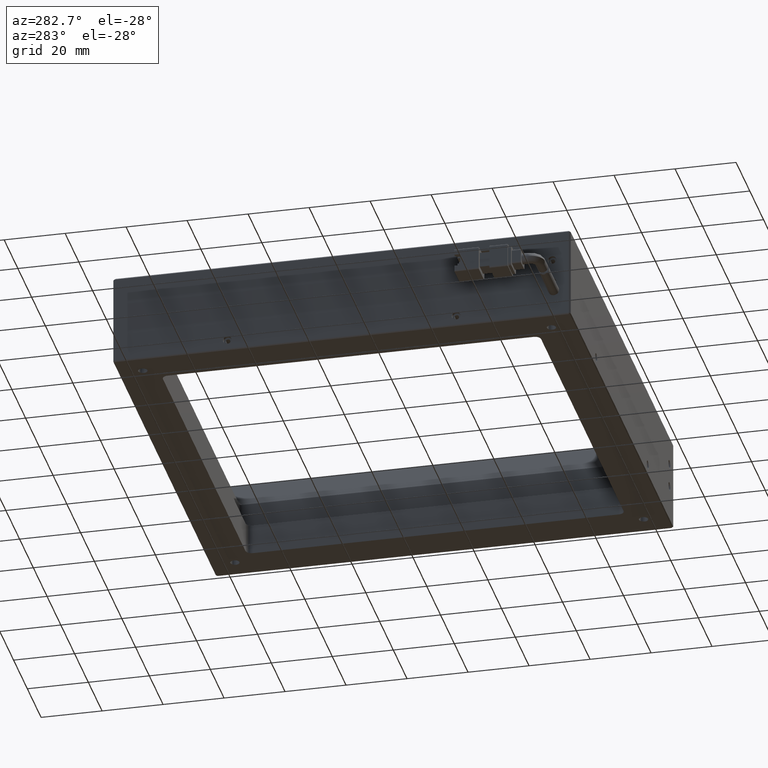
[diagram: clean part render]
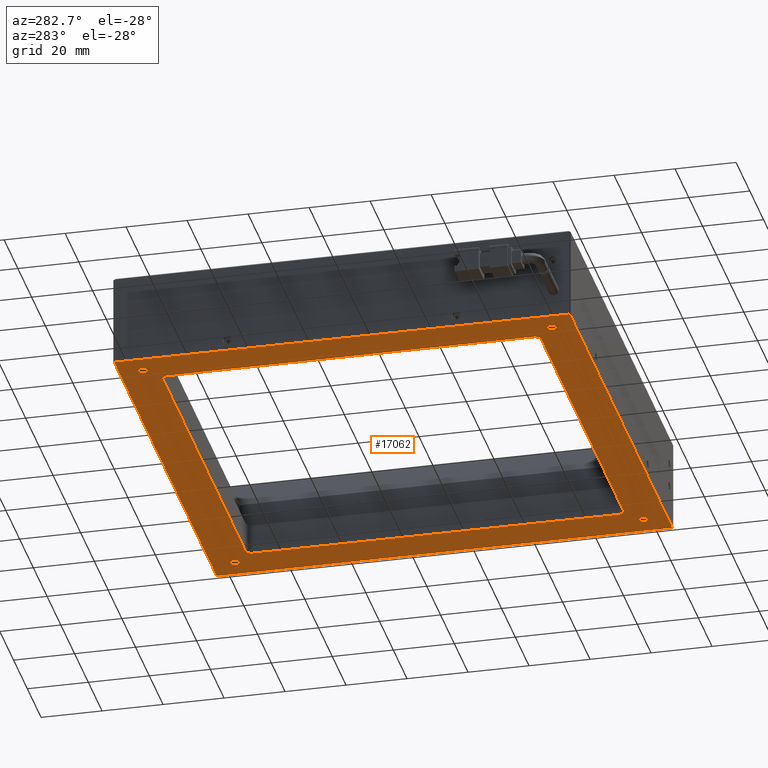
[diagram: same view with one face highlighted and labeled with its STEP entity id]
A machine part, auxiliary view. The second image highlights one B-rep face of the part: STEP entity #17062.
In plain terms, the highlighted planar face has unit normal (0, 0, -1).
Its self-contained STEP definition (entity closure, byte-faithful):
#53 = ORIENTED_EDGE ( 'NONE', *, *, #10431, .T. ) ;
#137 = EDGE_CURVE ( 'NONE', #1394, #10151, #2453, .T. ) ;
#292 = CARTESIAN_POINT ( 'NONE',  ( -84.20748655061092300, -63.95061932287364200, -4.999999999999938700 ) ) ;
#318 = EDGE_CURVE ( 'NONE', #13336, #2080, #16408, .T. ) ;
#358 = VERTEX_POINT ( 'NONE', #15111 ) ;
#499 = EDGE_CURVE ( 'NONE', #7319, #5246, #15657, .T. ) ;
#551 = CARTESIAN_POINT ( 'NONE',  ( -69.83175061932284700, 70.74938067712632500, -4.999999999999938700 ) ) ;
#646 = ORIENTED_EDGE ( 'NONE', *, *, #9256, .T. ) ;
#648 = CARTESIAN_POINT ( 'NONE',  ( 64.86824938067711300, 85.12511660841441600, -4.999999999999938700 ) ) ;
#678 = CIRCLE ( 'NONE', #18795, 1.500000000000029100 ) ;
#961 = DIRECTION ( 'NONE',  ( -1.000000000000000000, 0.0000000000000000000, 0.0000000000000000000 ) ) ;
#1154 = VECTOR ( 'NONE', #9550, 1000.000000000000000 ) ;
#1233 = VECTOR ( 'NONE', #8865, 1000.000000000000000 ) ;
#1374 = LINE ( 'NONE', #292, #17637 ) ;
#1380 = DIRECTION ( 'NONE',  ( -0.0000000000000000000, 0.0000000000000000000, 1.000000000000000000 ) ) ;
#1394 = VERTEX_POINT ( 'NONE', #19283 ) ;
#1542 = LINE ( 'NONE', #12636, #17287 ) ;
#1568 = DIRECTION ( 'NONE',  ( 0.0000000000000000000, 0.0000000000000000000, 1.000000000000000000 ) ) ;
#1767 = ORIENTED_EDGE ( 'NONE', *, *, #6203, .T. ) ;
#1866 = VECTOR ( 'NONE', #18295, 1000.000000000000100 ) ;
#1867 = EDGE_CURVE ( 'NONE', #11138, #11310, #678, .T. ) ;
#2022 = DIRECTION ( 'NONE',  ( 0.0000000000000000000, 0.0000000000000000000, 1.000000000000000000 ) ) ;
#2028 = AXIS2_PLACEMENT_3D ( 'NONE', #18224, #8791, #19786 ) ;
#2080 = VERTEX_POINT ( 'NONE', #11585 ) ;
#2147 = DIRECTION ( 'NONE',  ( 1.000000000000000000, 0.0000000000000000000, 0.0000000000000000000 ) ) ;
#2409 = DIRECTION ( 'NONE',  ( -1.000000000000000000, 0.0000000000000000000, -0.0000000000000000000 ) ) ;
#2453 = LINE ( 'NONE', #4066, #10323 ) ;
#2587 = AXIS2_PLACEMENT_3D ( 'NONE', #7693, #18673, #9266 ) ;
#2674 = AXIS2_PLACEMENT_3D ( 'NONE', #10989, #1568, #12563 ) ;
#2748 = CARTESIAN_POINT ( 'NONE',  ( 65.16824938067712500, -64.25061932287364600, -4.999999999999938700 ) ) ;
#3006 = ORIENTED_EDGE ( 'NONE', *, *, #12011, .T. ) ;
#3096 = CIRCLE ( 'NONE', #20095, 2.000000000000001800 ) ;
#3121 = VERTEX_POINT ( 'NONE', #648 ) ;
#3173 = CARTESIAN_POINT ( 'NONE',  ( -84.20748655061092300, -63.95061932287362800, -4.999999999999940500 ) ) ;
#3369 = EDGE_LOOP ( 'NONE', ( #14913, #8020 ) ) ;
#3518 = ORIENTED_EDGE ( 'NONE', *, *, #11587, .T. ) ;
#3537 = EDGE_CURVE ( 'NONE', #2080, #13336, #5035, .T. ) ;
#3650 = CARTESIAN_POINT ( 'NONE',  ( 58.66824938067720300, 77.74938067712635400, -5.000000000000061300 ) ) ;
#3868 = LINE ( 'NONE', #8247, #11770 ) ;
#3875 = FACE_BOUND ( 'NONE', #8641, .T. ) ;
#3952 = CARTESIAN_POINT ( 'NONE',  ( 65.16824938067712500, -63.95061932287364200, -4.999999999999938700 ) ) ;
#3955 = CARTESIAN_POINT ( 'NONE',  ( 50.16824938067718200, 72.74938067712632500, -4.999999999999938700 ) ) ;
#4066 = CARTESIAN_POINT ( 'NONE',  ( -84.53175061932287800, -64.25061932287364600, -4.999999999999938700 ) ) ;
#4209 = EDGE_CURVE ( 'NONE', #3121, #18738, #1542, .T. ) ;
#4230 = VERTEX_POINT ( 'NONE', #19027 ) ;
#4325 = DIRECTION ( 'NONE',  ( -1.000000000000000000, 0.0000000000000000000, -0.0000000000000000000 ) ) ;
#4348 = CARTESIAN_POINT ( 'NONE',  ( -76.83175061932284700, -56.25061932287367500, -5.000000000000061300 ) ) ;
#4667 = EDGE_LOOP ( 'NONE', ( #9603, #11210 ) ) ;
#4684 = DIRECTION ( 'NONE',  ( 0.7071067811865323600, -0.7071067811865626700, 0.0000000000000000000 ) ) ;
#4793 = AXIS2_PLACEMENT_3D ( 'NONE', #8677, #19674, #10264 ) ;
#4844 = CARTESIAN_POINT ( 'NONE',  ( 55.66824938067714600, 77.74938067712635400, -5.000000000000061300 ) ) ;
#4886 = CARTESIAN_POINT ( 'NONE',  ( 65.16824938067712500, 72.74938067712632500, -4.999999999999938700 ) ) ;
#5020 = VECTOR ( 'NONE', #19597, 1000.000000000000000 ) ;
#5027 = CARTESIAN_POINT ( 'NONE',  ( 52.16824938067718200, 70.74938067712632500, -4.999999999999938700 ) ) ;
#5035 = CIRCLE ( 'NONE', #9003, 1.500000000000029100 ) ;
#5246 = VERTEX_POINT ( 'NONE', #3955 ) ;
#5402 = LINE ( 'NONE', #7304, #1233 ) ;
#5438 = VERTEX_POINT ( 'NONE', #18610 ) ;
#5457 = EDGE_CURVE ( 'NONE', #11310, #11138, #13962, .T. ) ;
#5581 = EDGE_CURVE ( 'NONE', #9155, #17556, #17895, .T. ) ;
#5854 = DIRECTION ( 'NONE',  ( 0.0000000000000000000, 0.0000000000000000000, 1.000000000000000000 ) ) ;
#5933 = DIRECTION ( 'NONE',  ( -1.000000000000000000, 0.0000000000000000000, 0.0000000000000000000 ) ) ;
#6062 = CARTESIAN_POINT ( 'NONE',  ( -78.33175061932287500, -56.25061932287367500, -5.000000000000061300 ) ) ;
#6104 = CARTESIAN_POINT ( 'NONE',  ( 52.16824938067718200, -64.25061932287364600, -4.999999999999938700 ) ) ;
#6203 = EDGE_CURVE ( 'NONE', #358, #14140, #7258, .T. ) ;
#6625 = VECTOR ( 'NONE', #12798, 1000.000000000000000 ) ;
#6670 = DIRECTION ( 'NONE',  ( 0.0000000000000000000, 0.0000000000000000000, 1.000000000000000000 ) ) ;
#6995 = EDGE_CURVE ( 'NONE', #8322, #11645, #17964, .T. ) ;
#7258 = CIRCLE ( 'NONE', #10506, 1.500000000000029100 ) ;
#7304 = CARTESIAN_POINT ( 'NONE',  ( -84.53175061932287800, 85.12511660841443000, -4.999999999999938700 ) ) ;
#7319 = VERTEX_POINT ( 'NONE', #5027 ) ;
#7667 = EDGE_CURVE ( 'NONE', #16527, #7319, #17447, .T. ) ;
#7693 = CARTESIAN_POINT ( 'NONE',  ( 57.16824938067717500, 77.74938067712635400, -5.000000000000061300 ) ) ;
#7697 = DIRECTION ( 'NONE',  ( 0.0000000000000000000, 1.000000000000000000, 0.0000000000000000000 ) ) ;
#7876 = AXIS2_PLACEMENT_3D ( 'NONE', #8995, #19973, #10565 ) ;
#7947 = AXIS2_PLACEMENT_3D ( 'NONE', #10792, #1380, #12366 ) ;
#8020 = ORIENTED_EDGE ( 'NONE', *, *, #14536, .T. ) ;
#8106 = FACE_BOUND ( 'NONE', #10763, .T. ) ;
#8150 = DIRECTION ( 'NONE',  ( -0.7071067811865324700, 0.7071067811865626700, 0.0000000000000000000 ) ) ;
#8172 = VERTEX_POINT ( 'NONE', #8689 ) ;
#8247 = CARTESIAN_POINT ( 'NONE',  ( 65.16824938067712500, -51.25061932287366800, -4.999999999999938700 ) ) ;
#8276 = EDGE_CURVE ( 'NONE', #14140, #358, #14416, .T. ) ;
#8322 = VERTEX_POINT ( 'NONE', #6062 ) ;
#8549 = AXIS2_PLACEMENT_3D ( 'NONE', #4348, #15349, #5933 ) ;
#8641 = EDGE_LOOP ( 'NONE', ( #18750, #1767 ) ) ;
#8677 = CARTESIAN_POINT ( 'NONE',  ( 50.16824938067719600, -49.25061932287366800, -4.999999999999938700 ) ) ;
#8689 = CARTESIAN_POINT ( 'NONE',  ( -69.83175061932284700, 72.74938067712632500, -4.999999999999938700 ) ) ;
#8791 = DIRECTION ( 'NONE',  ( 0.0000000000000000000, 0.0000000000000000000, 1.000000000000000000 ) ) ;
#8864 = CARTESIAN_POINT ( 'NONE',  ( 64.86824938067711300, -63.62635525416173000, -4.999999999999938700 ) ) ;
#8865 = DIRECTION ( 'NONE',  ( 0.7071067811865172600, 0.7071067811865777700, 0.0000000000000000000 ) ) ;
#8995 = CARTESIAN_POINT ( 'NONE',  ( -76.83175061932284700, -56.25061932287367500, -5.000000000000061300 ) ) ;
#9003 = AXIS2_PLACEMENT_3D ( 'NONE', #19789, #10383, #961 ) ;
#9077 = EDGE_CURVE ( 'NONE', #17556, #3121, #17877, .T. ) ;
#9155 = VERTEX_POINT ( 'NONE', #14388 ) ;
#9164 = ORIENTED_EDGE ( 'NONE', *, *, #19628, .T. ) ;
#9198 = EDGE_CURVE ( 'NONE', #11655, #1394, #1374, .T. ) ;
#9216 = CARTESIAN_POINT ( 'NONE',  ( 55.66824938067714600, -56.25061932287367500, -5.000000000000061300 ) ) ;
#9256 = EDGE_CURVE ( 'NONE', #8172, #20116, #3096, .T. ) ;
#9266 = DIRECTION ( 'NONE',  ( -1.000000000000000000, 0.0000000000000000000, 0.0000000000000000000 ) ) ;
#9390 = EDGE_CURVE ( 'NONE', #18738, #5438, #18090, .T. ) ;
#9479 = CARTESIAN_POINT ( 'NONE',  ( 65.16824938067712500, 85.44938067712634200, -4.999999999999938700 ) ) ;
#9550 = DIRECTION ( 'NONE',  ( 1.000000000000000000, -0.0000000000000000000, 0.0000000000000000000 ) ) ;
#9572 = ORIENTED_EDGE ( 'NONE', *, *, #7667, .T. ) ;
#9603 = ORIENTED_EDGE ( 'NONE', *, *, #1867, .T. ) ;
#9840 = DIRECTION ( 'NONE',  ( 1.000000000000000000, -0.0000000000000000000, 0.0000000000000000000 ) ) ;
#10151 = VERTEX_POINT ( 'NONE', #14181 ) ;
#10264 = DIRECTION ( 'NONE',  ( 1.000000000000000000, 0.0000000000000000000, 0.0000000000000000000 ) ) ;
#10298 = EDGE_CURVE ( 'NONE', #20116, #15378, #13390, .T. ) ;
#10323 = VECTOR ( 'NONE', #18251, 1000.000000000000000 ) ;
#10383 = DIRECTION ( 'NONE',  ( 0.0000000000000000000, 0.0000000000000000000, 1.000000000000000000 ) ) ;
#10431 = EDGE_CURVE ( 'NONE', #10151, #9155, #5402, .T. ) ;
#10488 = AXIS2_PLACEMENT_3D ( 'NONE', #15275, #5854, #16869 ) ;
#10506 = AXIS2_PLACEMENT_3D ( 'NONE', #16081, #6670, #17695 ) ;
#10565 = DIRECTION ( 'NONE',  ( -1.000000000000000000, 0.0000000000000000000, 0.0000000000000000000 ) ) ;
#10656 = CIRCLE ( 'NONE', #7876, 1.500000000000029100 ) ;
#10763 = EDGE_LOOP ( 'NONE', ( #15995, #646, #18339, #3518, #13043, #9164, #9572, #18836 ) ) ;
#10786 = EDGE_CURVE ( 'NONE', #5246, #8172, #11306, .T. ) ;
#10792 = CARTESIAN_POINT ( 'NONE',  ( -69.83175061932287500, -49.25061932287366800, -4.999999999999938700 ) ) ;
#10989 = CARTESIAN_POINT ( 'NONE',  ( 50.16824938067718200, 70.74938067712632500, -4.999999999999938700 ) ) ;
#11020 = CARTESIAN_POINT ( 'NONE',  ( -75.33175061932281800, -56.25061932287367500, -5.000000000000061300 ) ) ;
#11067 = ORIENTED_EDGE ( 'NONE', *, *, #9390, .T. ) ;
#11138 = VERTEX_POINT ( 'NONE', #4844 ) ;
#11210 = ORIENTED_EDGE ( 'NONE', *, *, #5457, .T. ) ;
#11306 = LINE ( 'NONE', #4886, #6625 ) ;
#11310 = VERTEX_POINT ( 'NONE', #3650 ) ;
#11323 = ORIENTED_EDGE ( 'NONE', *, *, #9077, .T. ) ;
#11436 = CARTESIAN_POINT ( 'NONE',  ( 57.16824938067717500, 77.74938067712635400, -5.000000000000061300 ) ) ;
#11567 = DIRECTION ( 'NONE',  ( 0.0000000000000000000, 0.0000000000000000000, 1.000000000000000000 ) ) ;
#11585 = CARTESIAN_POINT ( 'NONE',  ( -78.33175061932286100, 77.74938067712635400, -5.000000000000061300 ) ) ;
#11587 = EDGE_CURVE ( 'NONE', #15378, #4230, #13432, .T. ) ;
#11637 = CARTESIAN_POINT ( 'NONE',  ( -71.83175061932283300, -64.25061932287364600, -4.999999999999938700 ) ) ;
#11645 = VERTEX_POINT ( 'NONE', #11020 ) ;
#11655 = VERTEX_POINT ( 'NONE', #3173 ) ;
#11770 = VECTOR ( 'NONE', #9840, 1000.000000000000000 ) ;
#11861 = CIRCLE ( 'NONE', #4793, 2.000000000000001800 ) ;
#12011 = EDGE_CURVE ( 'NONE', #5438, #11655, #14875, .T. ) ;
#12149 = CARTESIAN_POINT ( 'NONE',  ( -71.83175061932284700, -49.25061932287366800, -4.999999999999938700 ) ) ;
#12247 = FACE_BOUND ( 'NONE', #4667, .T. ) ;
#12366 = DIRECTION ( 'NONE',  ( 1.000000000000000000, 0.0000000000000000000, 0.0000000000000000000 ) ) ;
#12393 = CARTESIAN_POINT ( 'NONE',  ( 52.16824938067718200, -49.25061932287366800, -4.999999999999938700 ) ) ;
#12562 = DIRECTION ( 'NONE',  ( -0.0000000000000000000, -1.000000000000000000, -0.0000000000000000000 ) ) ;
#12563 = DIRECTION ( 'NONE',  ( 1.000000000000000000, 0.0000000000000000000, 0.0000000000000000000 ) ) ;
#12636 = CARTESIAN_POINT ( 'NONE',  ( 64.86824938067711300, -64.25061932287364600, -4.999999999999938700 ) ) ;
#12767 = VECTOR ( 'NONE', #7697, 1000.000000000000000 ) ;
#12798 = DIRECTION ( 'NONE',  ( -1.000000000000000000, 0.0000000000000000000, -0.0000000000000000000 ) ) ;
#13016 = CARTESIAN_POINT ( 'NONE',  ( -71.83175061932284700, 70.74938067712632500, -4.999999999999938700 ) ) ;
#13024 = DIRECTION ( 'NONE',  ( -1.000000000000000000, 0.0000000000000000000, 0.0000000000000000000 ) ) ;
#13043 = ORIENTED_EDGE ( 'NONE', *, *, #17856, .T. ) ;
#13336 = VERTEX_POINT ( 'NONE', #16022 ) ;
#13390 = LINE ( 'NONE', #11637, #5020 ) ;
#13432 = CIRCLE ( 'NONE', #7947, 2.000000000000001800 ) ;
#13604 = ORIENTED_EDGE ( 'NONE', *, *, #4209, .T. ) ;
#13683 = VECTOR ( 'NONE', #4684, 1000.000000000000000 ) ;
#13755 = DIRECTION ( 'NONE',  ( 0.0000000000000000000, 0.0000000000000000000, -1.000000000000000000 ) ) ;
#13962 = CIRCLE ( 'NONE', #2587, 1.500000000000029100 ) ;
#14034 = ORIENTED_EDGE ( 'NONE', *, *, #318, .T. ) ;
#14140 = VERTEX_POINT ( 'NONE', #9216 ) ;
#14181 = CARTESIAN_POINT ( 'NONE',  ( -84.53175061932287800, 85.12511660841447300, -4.999999999999935200 ) ) ;
#14388 = CARTESIAN_POINT ( 'NONE',  ( -84.20748655061098000, 85.44938067712634200, -4.999999999999938700 ) ) ;
#14416 = CIRCLE ( 'NONE', #10488, 1.500000000000029100 ) ;
#14536 = EDGE_CURVE ( 'NONE', #11645, #8322, #10656, .T. ) ;
#14740 = CARTESIAN_POINT ( 'NONE',  ( 50.16824938067719600, -51.25061932287366800, -4.999999999999938700 ) ) ;
#14875 = LINE ( 'NONE', #3952, #18571 ) ;
#14913 = ORIENTED_EDGE ( 'NONE', *, *, #6995, .T. ) ;
#14918 = EDGE_LOOP ( 'NONE', ( #17293, #14034 ) ) ;
#15111 = CARTESIAN_POINT ( 'NONE',  ( 58.66824938067720300, -56.25061932287367500, -5.000000000000061300 ) ) ;
#15275 = CARTESIAN_POINT ( 'NONE',  ( 57.16824938067717500, -56.25061932287367500, -5.000000000000061300 ) ) ;
#15349 = DIRECTION ( 'NONE',  ( 0.0000000000000000000, 0.0000000000000000000, 1.000000000000000000 ) ) ;
#15378 = VERTEX_POINT ( 'NONE', #12149 ) ;
#15657 = CIRCLE ( 'NONE', #2674, 2.000000000000001800 ) ;
#15952 = FACE_OUTER_BOUND ( 'NONE', #16252, .T. ) ;
#15995 = ORIENTED_EDGE ( 'NONE', *, *, #10786, .T. ) ;
#16022 = CARTESIAN_POINT ( 'NONE',  ( -75.33175061932280400, 77.74938067712635400, -5.000000000000061300 ) ) ;
#16081 = CARTESIAN_POINT ( 'NONE',  ( 57.16824938067717500, -56.25061932287367500, -5.000000000000061300 ) ) ;
#16252 = EDGE_LOOP ( 'NONE', ( #13604, #11067, #3006, #19636, #16855, #53, #20173, #11323 ) ) ;
#16408 = CIRCLE ( 'NONE', #2028, 1.500000000000029100 ) ;
#16434 = FACE_BOUND ( 'NONE', #14918, .T. ) ;
#16527 = VERTEX_POINT ( 'NONE', #12393 ) ;
#16855 = ORIENTED_EDGE ( 'NONE', *, *, #137, .T. ) ;
#16869 = DIRECTION ( 'NONE',  ( -1.000000000000000000, 0.0000000000000000000, 0.0000000000000000000 ) ) ;
#17062 = ADVANCED_FACE ( 'NONE', ( #8106, #3875, #12247, #16434, #20105, #15952 ), #19938, .T. ) ;
#17287 = VECTOR ( 'NONE', #12562, 1000.000000000000000 ) ;
#17293 = ORIENTED_EDGE ( 'NONE', *, *, #3537, .T. ) ;
#17447 = LINE ( 'NONE', #6104, #12767 ) ;
#17515 = AXIS2_PLACEMENT_3D ( 'NONE', #2748, #13755, #4325 ) ;
#17556 = VERTEX_POINT ( 'NONE', #18480 ) ;
#17637 = VECTOR ( 'NONE', #8150, 1000.000000000000000 ) ;
#17695 = DIRECTION ( 'NONE',  ( -1.000000000000000000, 0.0000000000000000000, 0.0000000000000000000 ) ) ;
#17856 = EDGE_CURVE ( 'NONE', #4230, #19130, #3868, .T. ) ;
#17877 = LINE ( 'NONE', #18712, #13683 ) ;
#17895 = LINE ( 'NONE', #9479, #1154 ) ;
#17964 = CIRCLE ( 'NONE', #8549, 1.500000000000029100 ) ;
#18090 = LINE ( 'NONE', #8864, #1866 ) ;
#18224 = CARTESIAN_POINT ( 'NONE',  ( -76.83175061932283300, 77.74938067712635400, -5.000000000000061300 ) ) ;
#18251 = DIRECTION ( 'NONE',  ( 0.0000000000000000000, 1.000000000000000000, 0.0000000000000000000 ) ) ;
#18295 = DIRECTION ( 'NONE',  ( -0.7071067811865474600, -0.7071067811865474600, 0.0000000000000000000 ) ) ;
#18339 = ORIENTED_EDGE ( 'NONE', *, *, #10298, .T. ) ;
#18461 = CARTESIAN_POINT ( 'NONE',  ( 64.86824938067711300, -63.62635525416173000, -4.999999999999938700 ) ) ;
#18480 = CARTESIAN_POINT ( 'NONE',  ( 64.54398531196518700, 85.44938067712635600, -4.999999999999938700 ) ) ;
#18571 = VECTOR ( 'NONE', #2409, 1000.000000000000000 ) ;
#18610 = CARTESIAN_POINT ( 'NONE',  ( 64.54398531196520100, -63.95061932287364200, -4.999999999999938700 ) ) ;
#18673 = DIRECTION ( 'NONE',  ( 0.0000000000000000000, 0.0000000000000000000, 1.000000000000000000 ) ) ;
#18712 = CARTESIAN_POINT ( 'NONE',  ( 64.54398531196518700, 85.44938067712634200, -4.999999999999938700 ) ) ;
#18738 = VERTEX_POINT ( 'NONE', #18461 ) ;
#18750 = ORIENTED_EDGE ( 'NONE', *, *, #8276, .T. ) ;
#18795 = AXIS2_PLACEMENT_3D ( 'NONE', #11436, #2022, #13024 ) ;
#18836 = ORIENTED_EDGE ( 'NONE', *, *, #499, .T. ) ;
#19027 = CARTESIAN_POINT ( 'NONE',  ( -69.83175061932286100, -51.25061932287366800, -4.999999999999938700 ) ) ;
#19130 = VERTEX_POINT ( 'NONE', #14740 ) ;
#19283 = CARTESIAN_POINT ( 'NONE',  ( -84.53175061932289200, -63.62635525416165900, -4.999999999999950300 ) ) ;
#19597 = DIRECTION ( 'NONE',  ( -0.0000000000000000000, -1.000000000000000000, -0.0000000000000000000 ) ) ;
#19628 = EDGE_CURVE ( 'NONE', #19130, #16527, #11861, .T. ) ;
#19636 = ORIENTED_EDGE ( 'NONE', *, *, #9198, .T. ) ;
#19674 = DIRECTION ( 'NONE',  ( 0.0000000000000000000, -0.0000000000000000000, 1.000000000000000000 ) ) ;
#19786 = DIRECTION ( 'NONE',  ( -1.000000000000000000, 0.0000000000000000000, 0.0000000000000000000 ) ) ;
#19789 = CARTESIAN_POINT ( 'NONE',  ( -76.83175061932283300, 77.74938067712635400, -5.000000000000061300 ) ) ;
#19938 = PLANE ( 'NONE',  #17515 ) ;
#19973 = DIRECTION ( 'NONE',  ( 0.0000000000000000000, 0.0000000000000000000, 1.000000000000000000 ) ) ;
#20095 = AXIS2_PLACEMENT_3D ( 'NONE', #551, #11567, #2147 ) ;
#20105 = FACE_BOUND ( 'NONE', #3369, .T. ) ;
#20116 = VERTEX_POINT ( 'NONE', #13016 ) ;
#20173 = ORIENTED_EDGE ( 'NONE', *, *, #5581, .T. ) ;